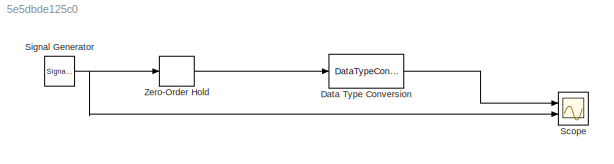
MODEL slx_5e5dbde125c0
KIND model
CONFIG AbsTol = auto
CONFIG EnableMultiTasking = off
CONFIG FixedStep = auto
CONFIG MaxStep = auto
CONFIG MinStep = auto
CONFIG RelTol = 1e-3
CONFIG SampleTimeConstraint = Unconstrained
CONFIG Solver = VariableStepAuto
CONFIG SolverName = VariableStepAuto
CONFIG StartTime = 0.0
CONFIG StopTime = 1
BLOCK [DataTypeConversion] Data Type Conversion
  OutDataTypeStr = fixdt(1,4,2)
  RndMeth = Floor
BLOCK [Scope] Scope
  Floating = off
  NumInputPorts = 2
  Ports = [2]
  ScopeSpecificationString = Simulink.scopes.TimeScopeBlockCfg('CurrentConfiguration', extmgr.ConfigurationSet(extmgr.Configuration('Core','General UI',true),extmgr.Configuration('Core','Source UI',true),extmgr.Configuration('Sources','WiredSimulink',true),extmgr.Configuration('Visuals','Time Domain',true,'SerializedDisplays',{struct('MinYLimReal','-3.75','MaxYLimReal','3.75','YLabelReal','','MinYLimMag','0.00000','MaxYLimMag...<+1416ch>
BLOCK [SignalGenerator] Signal Generator
  Amplitude = 3
  Ports = [0, 1]
BLOCK [ZeroOrderHold] Zero-Order Hold
  SampleTime = 0.01
LINE Data Type Conversion:1 -> Scope:1
NET Signal Generator:1 -> Scope:2, Zero-Order Hold:1
LINE Zero-Order Hold:1 -> Data Type Conversion:1
note: NET lines group one-source signal fan-out (src -> all destinations, sorted); 1:1 wires keep LINE
